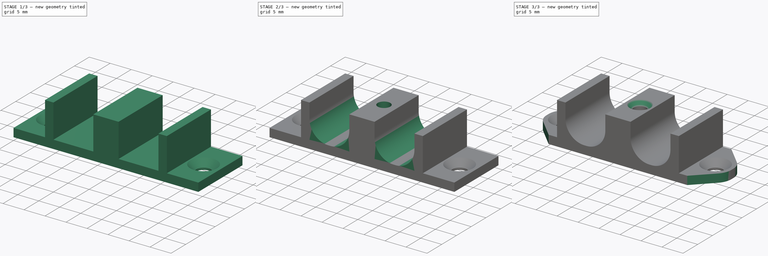
[diagram: build sequence overview — one tinted view per stage of 3, left to right]
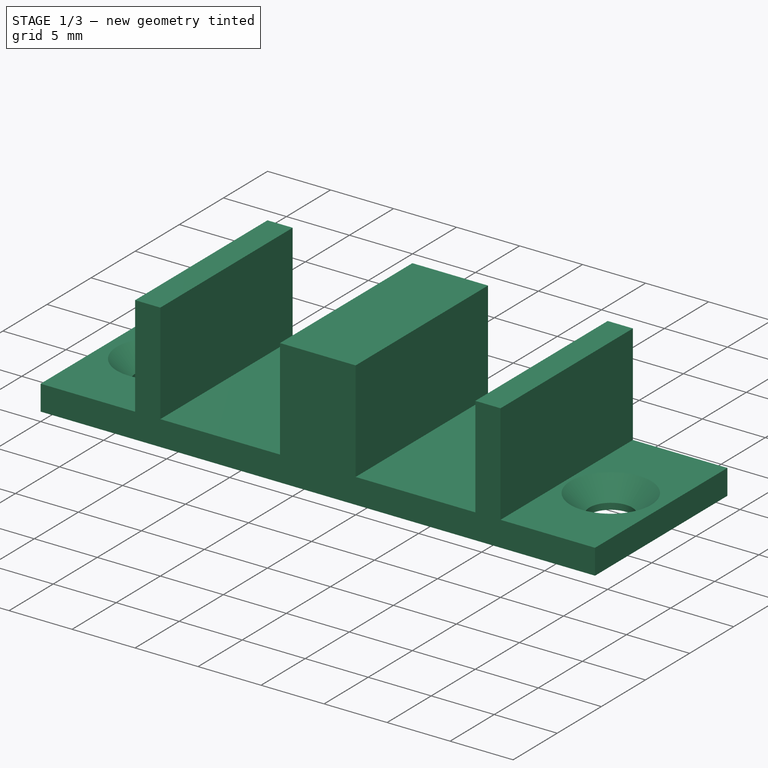
[diagram: stage 1 of 3 — iso view after this stage's code; geometry added in this stage tinted green]
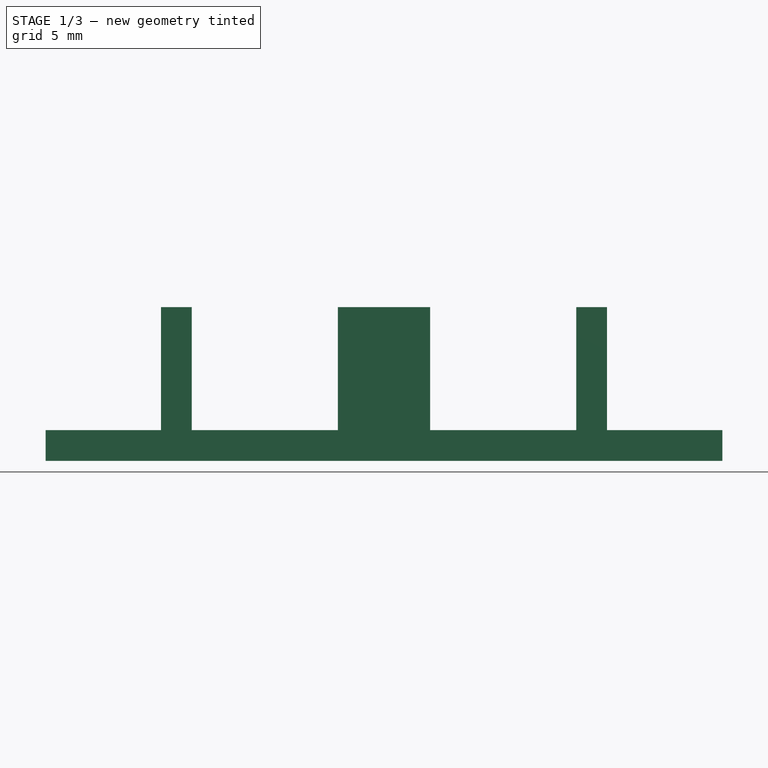
[diagram: stage 1 of 3 — front view after this stage's code; geometry added in this stage tinted green]
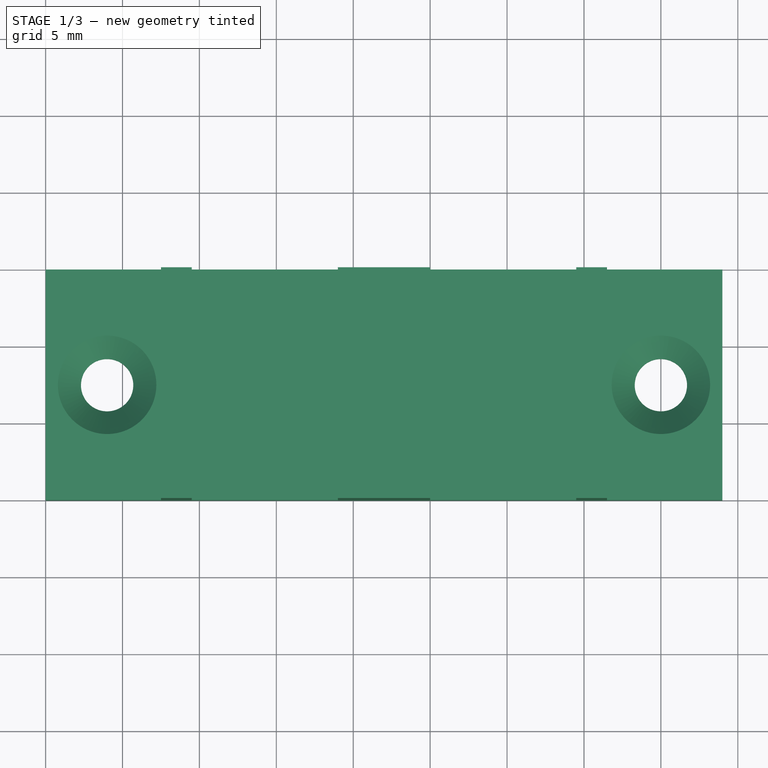
[diagram: stage 1 of 3 — top view after this stage's code; geometry added in this stage tinted green]
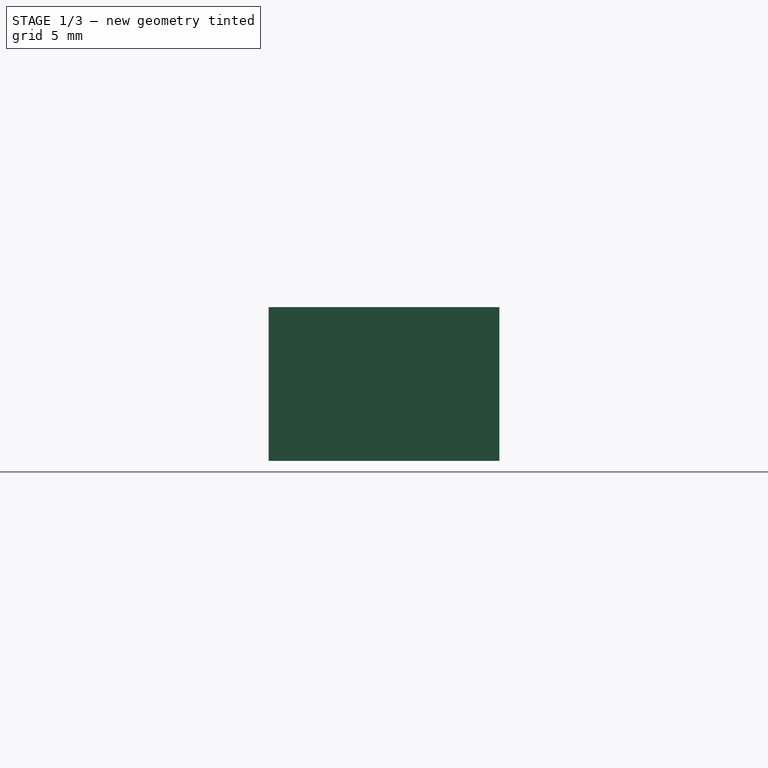
[diagram: stage 1 of 3 — right view after this stage's code; geometry added in this stage tinted green]
FCSTD DOCUMENT  (FreeCAD 0.18R16146 (Git))
Label: doubleDeanClampBottom
License: All rights reserved
LicenseURL: http://en.wikipedia.org/wiki/All_rights_reserved
objects: Sketcher::SketchObject×3, PartDesign::Chamfer×3, PartDesign::Pad×2, PartDesign::Fillet×2, PartDesign::Pocket×1, PartDesign::Body×1
note: 15 computed .brp shape members not serialized (recipe doc carries the construction recipe); baked Part::Feature solids carry a one-line shape summary decoded from their .brp

FEATURE [Sketcher::SketchObject] Sketch
  MapMode = 5
  Support = -> [XY_Plane]
  sketch-geometry (10):
    g0: LineSegment StartX=0 StartY=0 StartZ=0 EndX=44 EndY=0 EndZ=0
    g1: LineSegment StartX=44 StartY=0 StartZ=0 EndX=44 EndY=15 EndZ=0
    g2: LineSegment StartX=44 StartY=15 StartZ=0 EndX=0 EndY=15 EndZ=0
    g3: LineSegment StartX=0 StartY=15 StartZ=0 EndX=0 EndY=0 EndZ=0
    g4: Circle CenterX=4 CenterY=7.5 CenterZ=0 NormalX=0 NormalY=0 NormalZ=1 AngleXU=0 Radius=1.7
    g5: LineSegment [constr] StartX=0 StartY=7.5 StartZ=0 EndX=44 EndY=7.5 EndZ=0
    g6: Circle CenterX=40 CenterY=7.5 CenterZ=0 NormalX=0 NormalY=0 NormalZ=1 AngleXU=0 Radius=1.7
    g7: LineSegment [constr] StartX=4 StartY=7.5 StartZ=0 EndX=2.3 EndY=7.5 EndZ=0
    g8: LineSegment [constr] StartX=40 StartY=7.5 StartZ=0 EndX=41.7 EndY=7.5 EndZ=0
    g9: LineSegment [constr] StartX=22 StartY=15 StartZ=0 EndX=22 EndY=0 EndZ=0
  constraints (28):
    c: Coincident(g0,g1)
    c: Coincident(g1,g2)
    c: Coincident(g2,g3)
    c: Coincident(g3,g0)
    c: Horizontal(g0)
    c: Horizontal(g2)
    c: Vertical(g1)
    c: Vertical(g3)
    c: Coincident(g0,g-1)
    c: Distance(g2) = 44
    c: Distance(g3) = 15
    c: PointOnObject(g5,g3)
    c: PointOnObject(g5,g1)
    c: Symmetric(g2,g0,g5)
    c: PointOnObject(g4,g5)
    c: PointOnObject(g6,g5)
    c: Coincident(g7,g4)
    c: PointOnObject(g7,g4)
    c: Horizontal(g7)
    c: Radius(g4) = 1.7
    c: Coincident(g8,g6)
    c: PointOnObject(g8,g6)
    c: Horizontal(g8)
    c: Equal(g4,g6)
    c: PointOnObject(g9,g0)
    c: Symmetric(g2,g1,g9)
    c: Distance(g4,g6) = 36
    c: Symmetric(g4,g6,g9)
FEATURE [PartDesign::Pad] Pad
  Length = 2
  Length2 = 100
  Profile = -> Sketch
  Type = 0
FEATURE [PartDesign::Chamfer] Chamfer
  Base = -> Pad [Edge18,Edge15]
  BaseFeature = -> Pad
  Size = 1.5
FEATURE [Sketcher::SketchObject] Sketch001
  ExternalGeometry = -> [Chamfer]
  MapMode = 5
  Placement = pos=(0,0,2) rot=(0,0,1;0rad)
  Support = -> [Chamfer]
  sketch-geometry (13):
    g0: LineSegment StartX=7.5 StartY=15 StartZ=0 EndX=9.5 EndY=15 EndZ=0
    g1: LineSegment StartX=9.5 StartY=15 StartZ=0 EndX=9.5 EndY=0 EndZ=0
    g2: LineSegment StartX=9.5 StartY=0 StartZ=0 EndX=7.5 EndY=0 EndZ=0
    g3: LineSegment StartX=7.5 StartY=0 StartZ=0 EndX=7.5 EndY=15 EndZ=0
    g4: LineSegment StartX=34.5 StartY=15 StartZ=0 EndX=36.5 EndY=15 EndZ=0
    g5: LineSegment StartX=36.5 StartY=15 StartZ=0 EndX=36.5 EndY=0 EndZ=0
    g6: LineSegment StartX=36.5 StartY=0 StartZ=0 EndX=34.5 EndY=0 EndZ=0
    g7: LineSegment StartX=34.5 StartY=0 StartZ=0 EndX=34.5 EndY=15 EndZ=0
    g8: LineSegment StartX=19 StartY=15 StartZ=0 EndX=25 EndY=15 EndZ=0
    g9: LineSegment StartX=25 StartY=15 StartZ=0 EndX=25 EndY=0 EndZ=0
    g10: LineSegment StartX=25 StartY=0 StartZ=0 EndX=19 EndY=0 EndZ=0
    g11: LineSegment StartX=19 StartY=0 StartZ=0 EndX=19 EndY=15 EndZ=0
    g12: LineSegment [constr] StartX=22 StartY=15 StartZ=0 EndX=22 EndY=0 EndZ=0
  constraints (38):
    c: Coincident(g0,g1)
    c: Coincident(g1,g2)
    c: Coincident(g2,g3)
    c: Coincident(g3,g0)
    c: Horizontal(g0)
    c: Horizontal(g2)
    c: Vertical(g1)
    c: Vertical(g3)
    c: PointOnObject(g0,g-3)
    c: PointOnObject(g1,g-1)
    c: Coincident(g4,g5)
    c: Coincident(g5,g6)
    c: Coincident(g6,g7)
    c: Coincident(g7,g4)
    c: Horizontal(g4)
    c: Horizontal(g6)
    c: Vertical(g5)
    c: Vertical(g7)
    c: PointOnObject(g7,g-1)
    c: PointOnObject(g4,g-3)
    c: Distance(g0) = 2
    c: Equal(g4,g0)
    c: Coincident(g8,g9)
    c: Coincident(g9,g10)
    c: Coincident(g10,g11)
    c: Coincident(g11,g8)
    c: Horizontal(g8)
    c: Horizontal(g10)
    c: Vertical(g9)
    c: Vertical(g11)
    c: PointOnObject(g8,g-3)
    c: PointOnObject(g9,g-1)
    c: PointOnObject(g12,g10)
    c: Symmetric(g-3,g-3,g12)
    c: Symmetric(g8,g8,g12)
    c: Distance(g8,g1) = 9.5
    c: Distance(g8,g7) = 9.5
    c: Distance(g8) = 6
FEATURE [PartDesign::Pad] Pad001
  BaseFeature = -> Chamfer
  Length = 8
  Length2 = 100
  Profile = -> Sketch001
  Type = 0
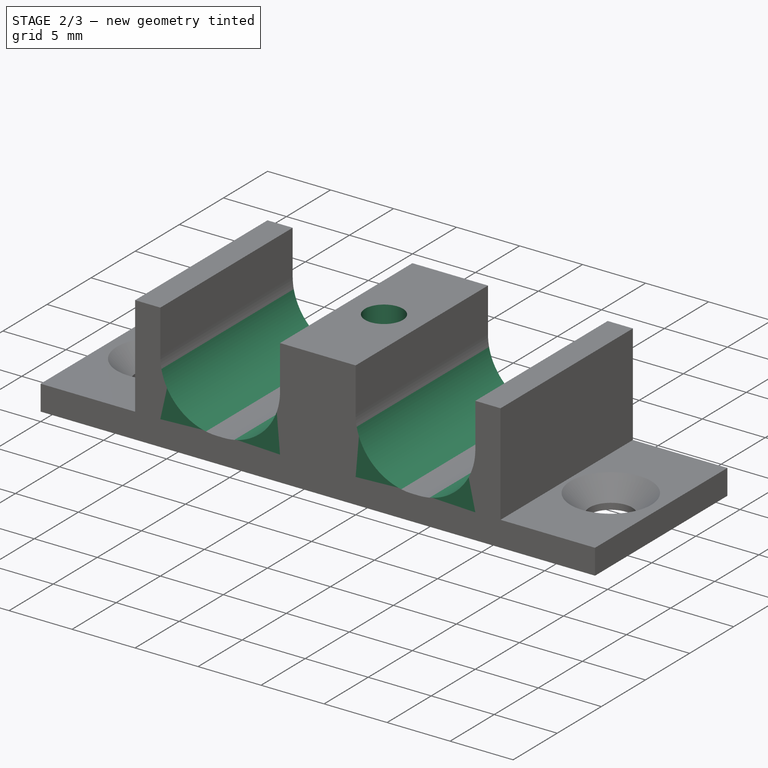
[diagram: stage 2 of 3 — iso view after this stage's code; geometry added in this stage tinted green]
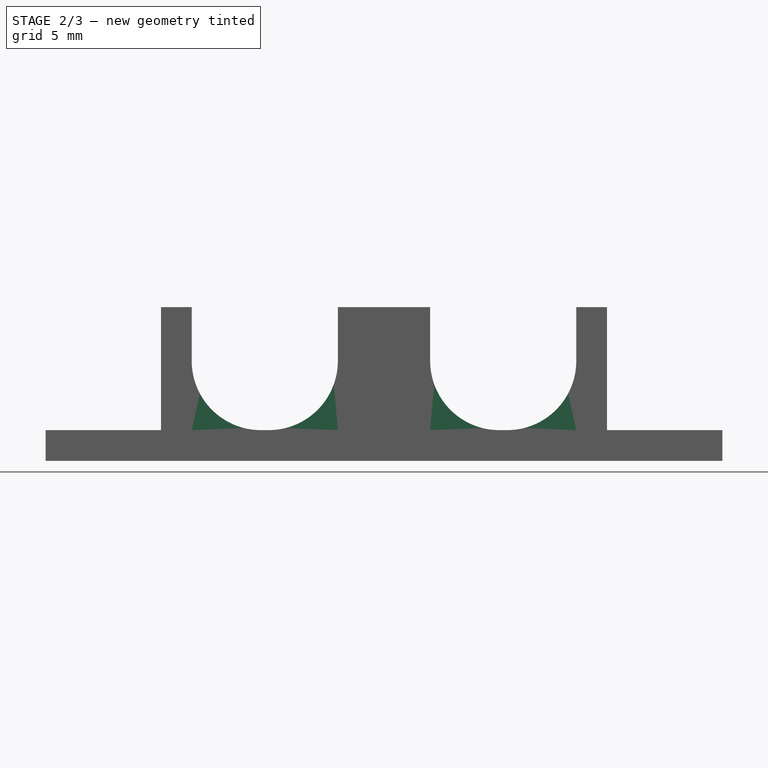
[diagram: stage 2 of 3 — front view after this stage's code; geometry added in this stage tinted green]
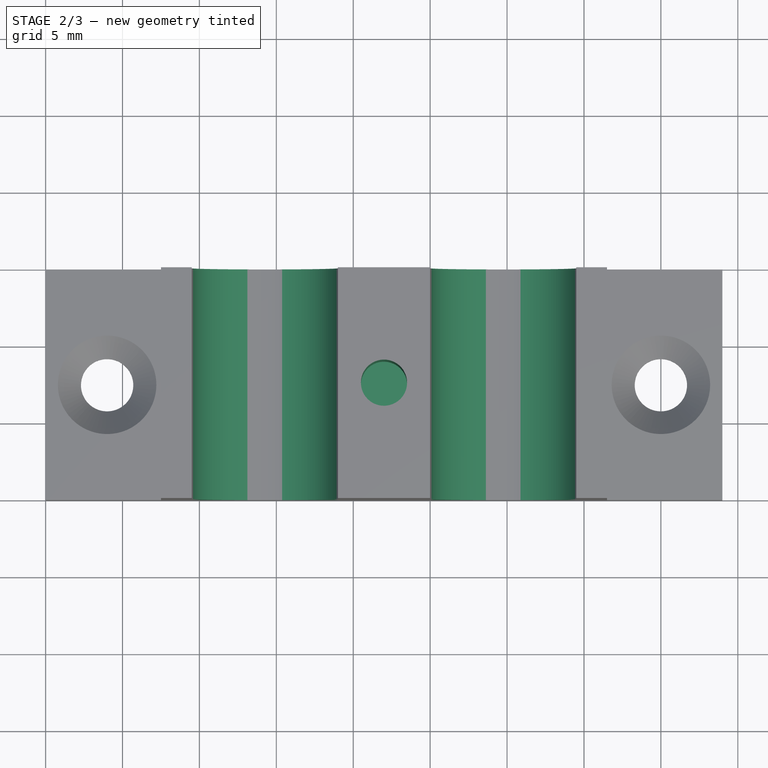
[diagram: stage 2 of 3 — top view after this stage's code; geometry added in this stage tinted green]
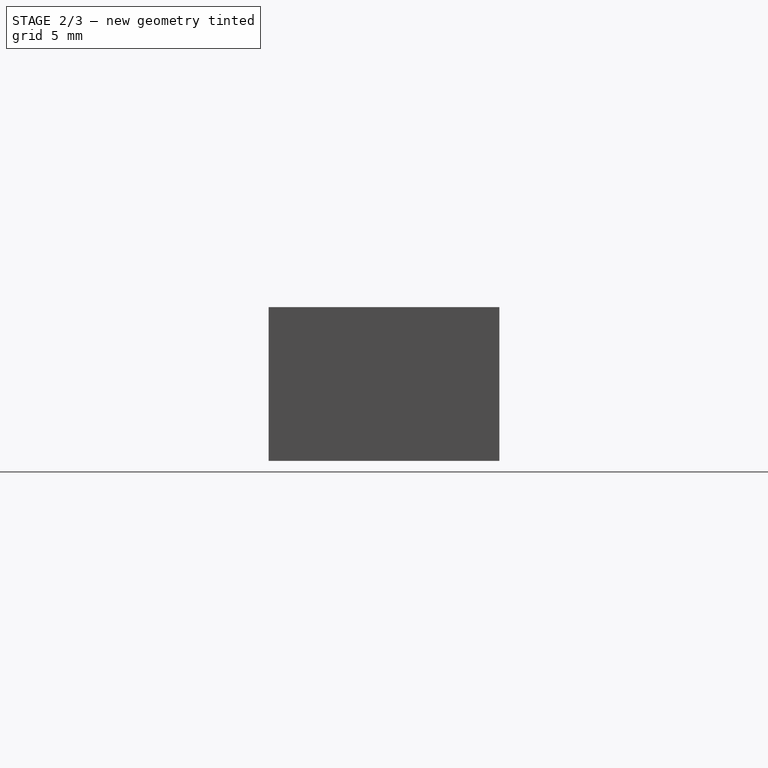
[diagram: stage 2 of 3 — right view after this stage's code; geometry added in this stage tinted green]
FEATURE [PartDesign::Fillet] Fillet
  Base = -> Pad001 [Edge42,Edge43,Edge47,Edge48]
  BaseFeature = -> Pad001
  Radius = 4.5
FEATURE [Sketcher::SketchObject] Sketch002
  ExternalGeometry = -> [Fillet]
  MapMode = 5
  Placement = pos=(0,0,10) rot=(0,0,1;0rad)
  Support = -> [Fillet]
  sketch-geometry (3):
    g0: LineSegment [constr] StartX=22 StartY=15 StartZ=0 EndX=22 EndY=0 EndZ=0
    g1: LineSegment [constr] StartX=19 StartY=7.5 StartZ=0 EndX=25 EndY=7.5 EndZ=0
    g2: Circle CenterX=22 CenterY=7.5 CenterZ=0 NormalX=0 NormalY=0 NormalZ=1 AngleXU=0 Radius=1.5
  constraints (9):
    c: PointOnObject(g0,g-1)
    c: Vertical(g0)
    c: Symmetric(g-5,g-5,g0)
    c: PointOnObject(g1,g-4)
    c: Horizontal(g1)
    c: Symmetric(g-5,g-3,g1)
    c: PointOnObject(g2,g0)
    c: PointOnObject(g2,g1)
    c: Radius(g2) = 1.5
FEATURE [PartDesign::Pocket] Pocket
  BaseFeature = -> Fillet
  Length = 8
  Length2 = 100
  Profile = -> Sketch002
  Type = 0
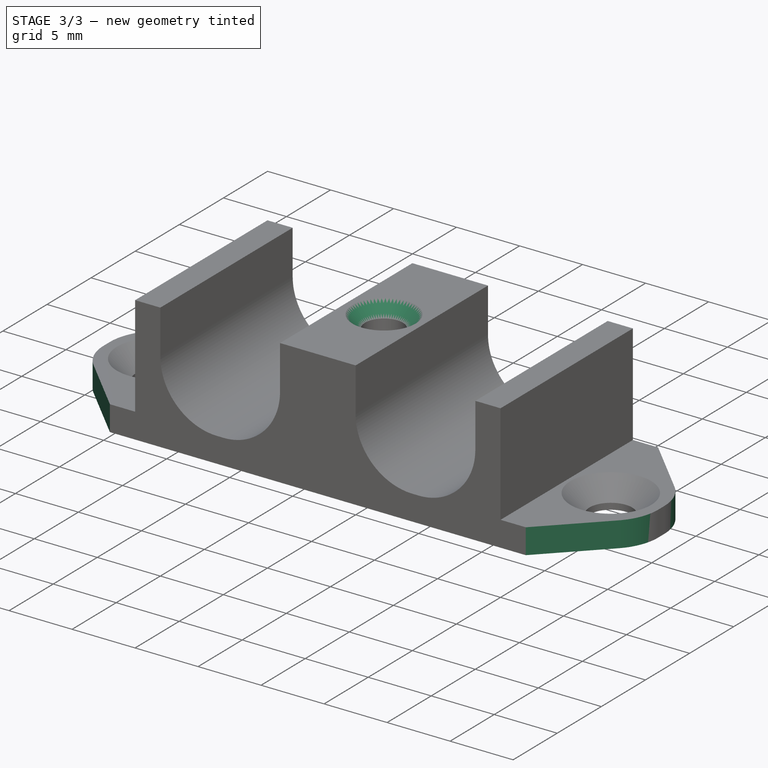
[diagram: stage 3 of 3 — iso view after this stage's code; geometry added in this stage tinted green]
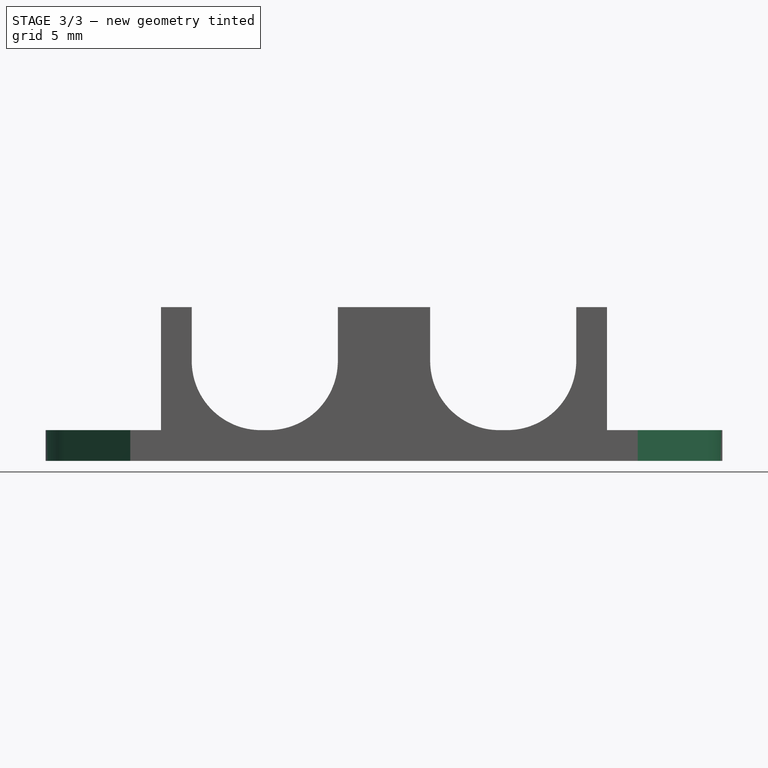
[diagram: stage 3 of 3 — front view after this stage's code; geometry added in this stage tinted green]
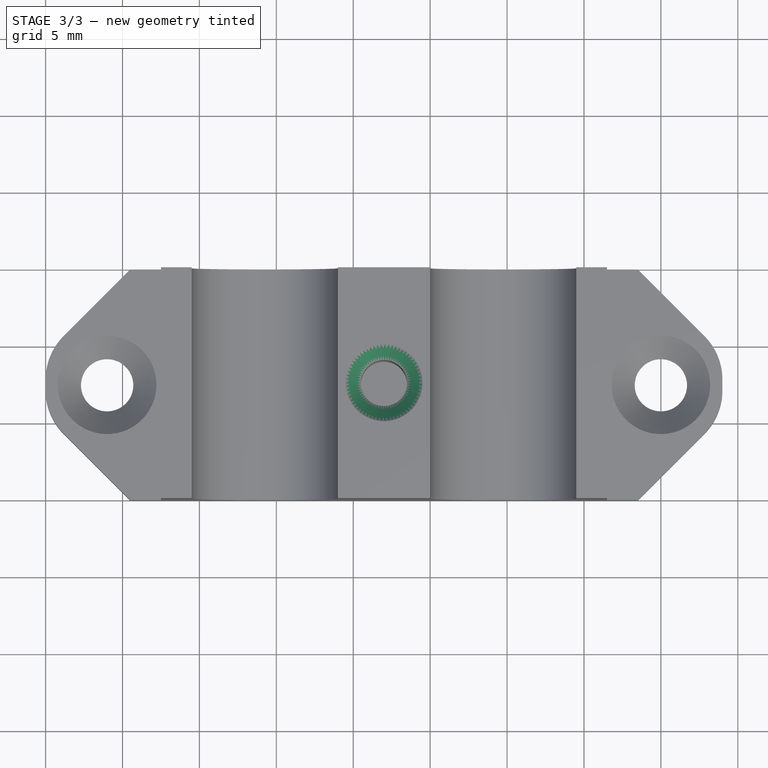
[diagram: stage 3 of 3 — top view after this stage's code; geometry added in this stage tinted green]
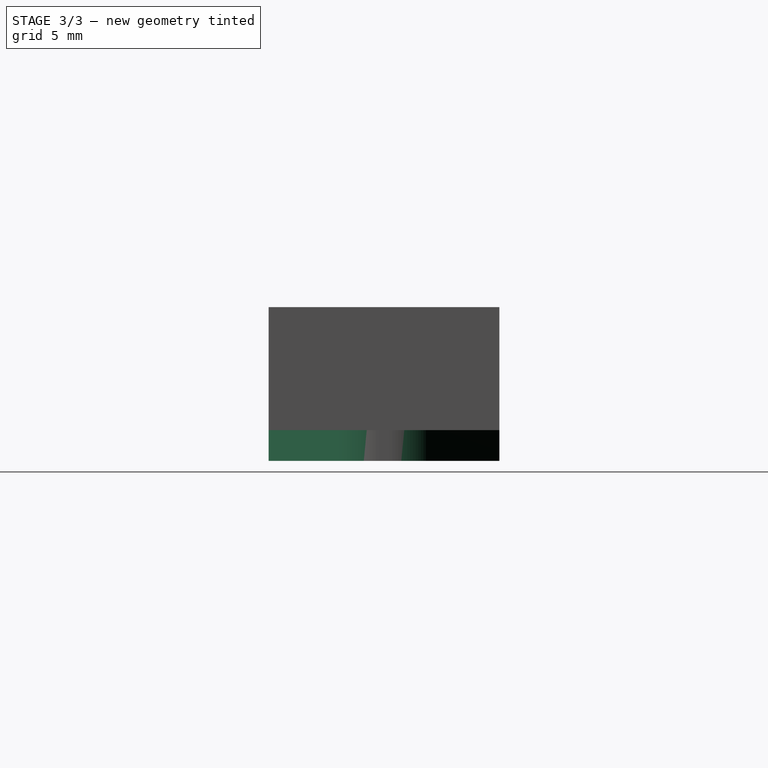
[diagram: stage 3 of 3 — right view after this stage's code; geometry added in this stage tinted green]
FEATURE [PartDesign::Chamfer] Chamfer001
  Base = -> Pocket [Edge8,Edge31,Edge44,Edge12]
  BaseFeature = -> Pocket
  Size = 5.5
FEATURE [PartDesign::Fillet] Fillet001
  Base = -> Chamfer001 [Edge22,Edge57,Edge76,Edge35]
  BaseFeature = -> Chamfer001
  Radius = 4
FEATURE [PartDesign::Chamfer] Chamfer002
  Base = -> Fillet001 [Edge108]
  BaseFeature = -> Fillet001
  Size = 1
FEATURE [PartDesign::Body] Body
  Group = -> [Sketch,Pad,Chamfer,Sketch001,Pad001,Fillet,Sketch002,Pocket,Chamfer001,Fillet001,Chamfer002]
  Origin = -> Origin
  Tip = -> Chamfer002
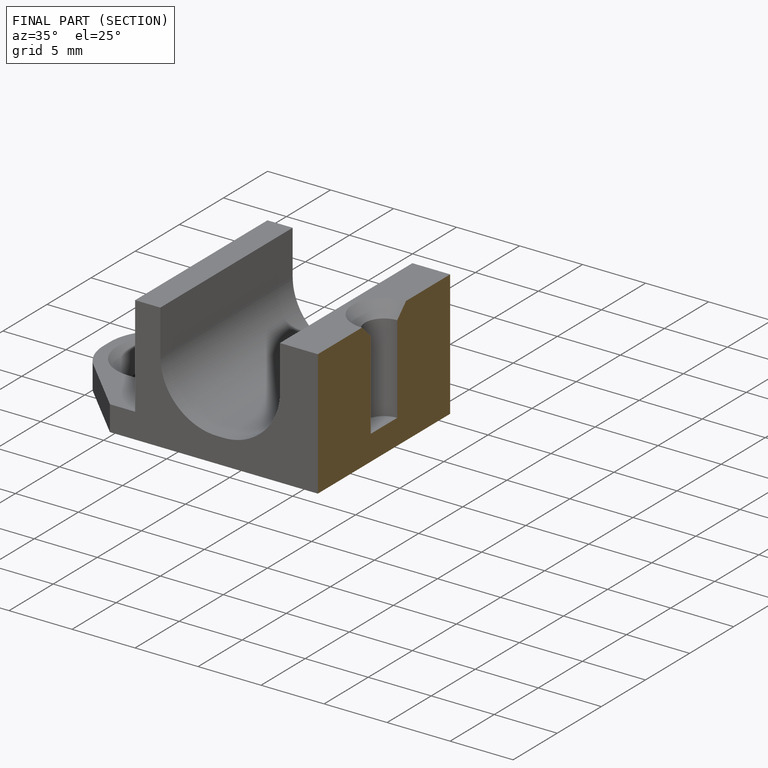
[diagram: finished part — half-section view (interior)]
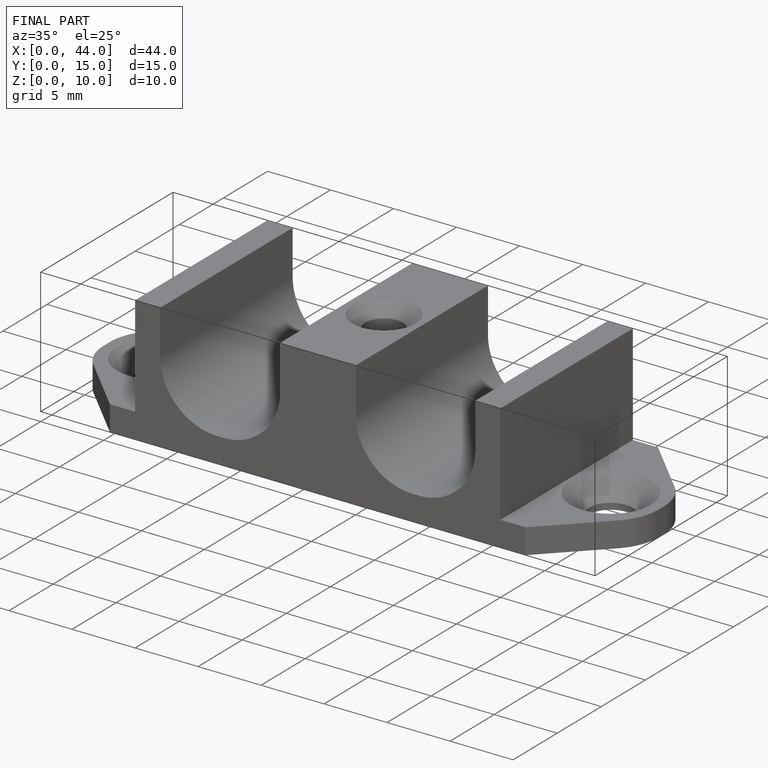
[diagram: finished part — iso view with bounding-box wireframe]
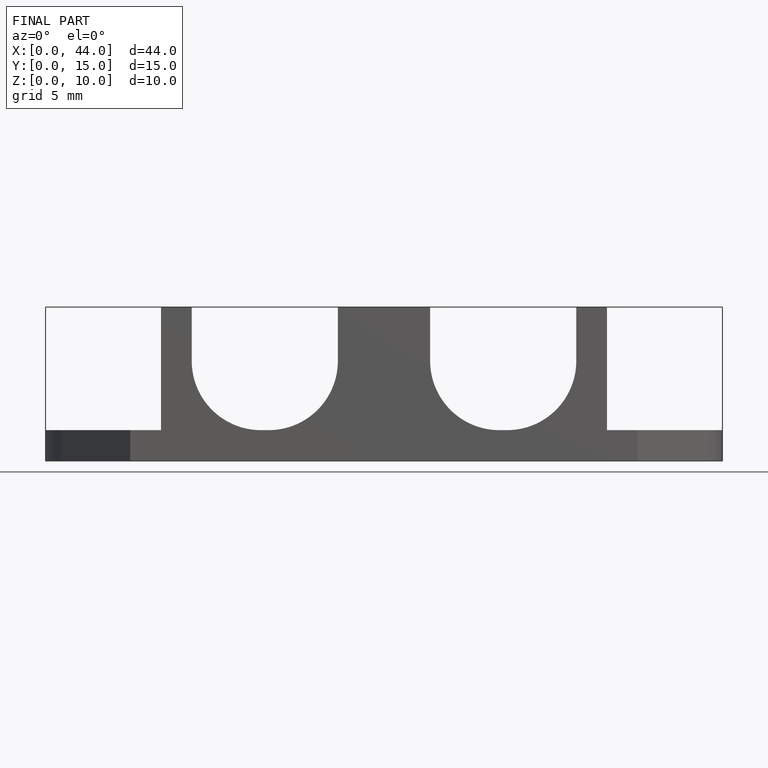
[diagram: finished part — front view with bounding-box wireframe]
